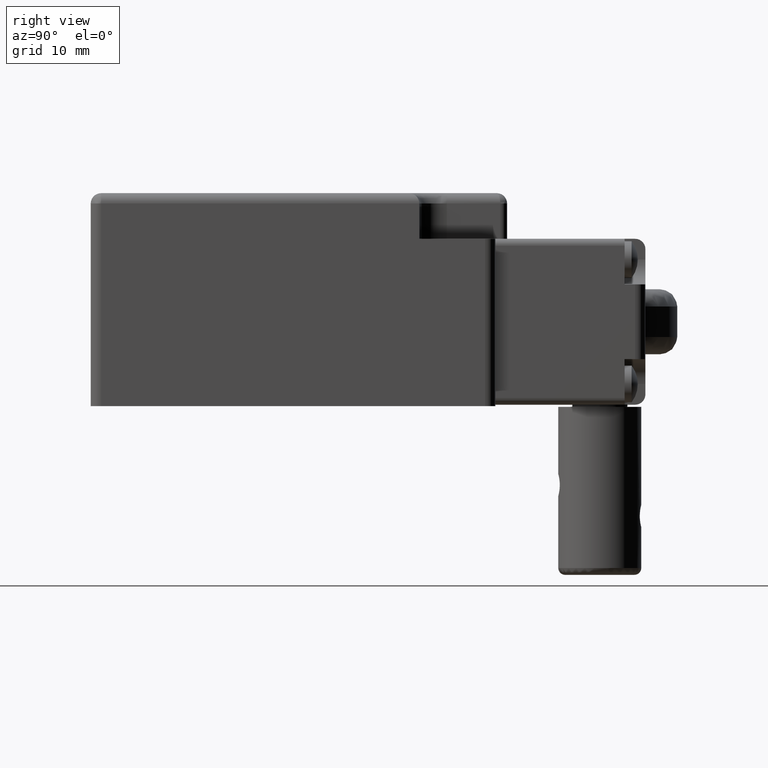
[diagram: clean part render]
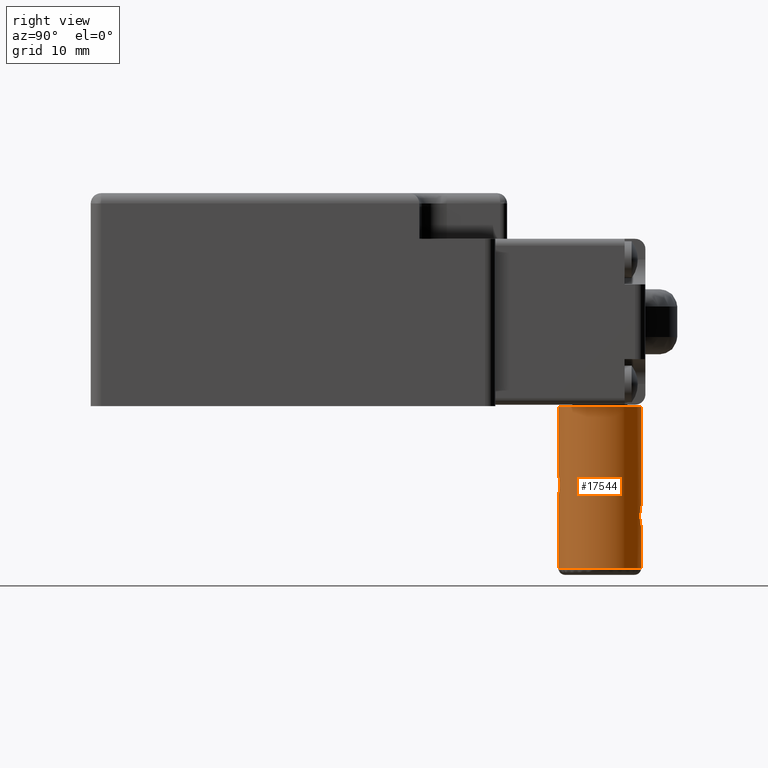
[diagram: same view with one face highlighted and labeled with its STEP entity id]
A machine part, right view. The second image highlights one B-rep face of the part: STEP entity #17544.
In plain terms, the highlighted cylindrical surface (partial cylindrical patch) has radius 6 mm, axis along (0, 0, 1).
Its self-contained STEP definition (entity closure, byte-faithful):
#16998=CARTESIAN_POINT('',(-2.480374E-015,16.099999999999994,-25.200000000000003));
#16999=VERTEX_POINT('',#16998);
#17000=CARTESIAN_POINT('',(-3.813901E-015,16.099999999999994,-22.0));
#17001=VERTEX_POINT('',#17000);
#17002=CARTESIAN_POINT('',(-2.480374E-015,16.099999999999994,-25.200000000000003));
#17003=CARTESIAN_POINT('',(0.106233644467883,16.099999999999994,-25.200000000000003));
#17004=CARTESIAN_POINT('',(0.210598348057782,16.102817240682789,-25.189525583302480));
#17005=CARTESIAN_POINT('',(0.415771067588282,16.113541353002365,-25.148572782769431));
#17006=CARTESIAN_POINT('',(0.517669180042312,16.121581734892580,-25.117565855412536));
#17007=CARTESIAN_POINT('',(0.711236262043647,16.141509477049585,-25.037056187152693));
#17008=CARTESIAN_POINT('',(0.802962663884153,16.153324245561468,-24.987859937617383));
#17009=CARTESIAN_POINT('',(0.976539240108665,16.179352005012710,-24.871721415469310));
#17010=CARTESIAN_POINT('',(1.058324065306069,16.193601877064673,-24.804465339267018));
#17011=CARTESIAN_POINT('',(1.278569390678206,16.235904607827386,-24.584076539719867));
#17012=CARTESIAN_POINT('',(1.397558003168634,16.264450933932245,-24.406356999156394));
#17013=CARTESIAN_POINT('',(1.557418671176274,16.305067010104736,-24.021695464738173));
#17014=CARTESIAN_POINT('',(1.599909473619248,16.317242034719339,-23.810478319876417));
#17015=CARTESIAN_POINT('',(1.600045040480137,16.317279544138991,-23.495794769020129));
#17016=CARTESIAN_POINT('',(1.589515352556807,16.314337192197904,-23.389211943414502));
#17017=CARTESIAN_POINT('',(1.548420667524555,16.303203762596013,-23.183605839143137));
#17018=CARTESIAN_POINT('',(1.518033222017346,16.295061793088404,-23.083625535244721));
#17019=CARTESIAN_POINT('',(1.397011283755964,16.264309015215250,-22.792145262403650));
#17020=CARTESIAN_POINT('',(1.279168946107213,16.236002614202924,-22.616351092783102));
#17021=CARTESIAN_POINT('',(1.057034856170974,16.193362890258989,-22.394331345610183));
#17022=CARTESIAN_POINT('',(0.976757872323931,16.179392732676604,-22.328475074835573));
#17023=CARTESIAN_POINT('',(0.803806929051539,16.153442947735378,-22.212655054692629));
#17024=CARTESIAN_POINT('',(0.710061231692479,16.141373419261107,-22.162384359020095));
#17025=CARTESIAN_POINT('',(0.516989111357506,16.121526955803976,-22.082222696611758));
#17026=CARTESIAN_POINT('',(0.417200613664795,16.113631369430848,-22.051773139444464));
#17027=CARTESIAN_POINT('',(0.210933703716437,16.102819603701999,-22.010481287803003));
#17028=CARTESIAN_POINT('',(0.104714867322355,16.099999999999994,-22.0));
#17029=CARTESIAN_POINT('',(-3.813901E-015,16.099999999999994,-22.0));
#17030=B_SPLINE_CURVE_WITH_KNOTS('',3,(#17002,#17003,#17004,#17005,#17006,#17007,#17008,#17009,#17010,#17011,#17012,#17013,#17014,#17015,#17016,#17017,#17018,#17019,#17020,#17021,#17022,#17023,#17024,#17025,#17026,#17027,#17028,#17029),.UNSPECIFIED.,.F.,.U.,(4,2,2,2,2,2,2,2,2,2,2,2,2,4),(5.814952E-019,0.000314072429703,0.000628144859405,0.000942217289108,0.001256289718811,0.001884434578216,0.002512579437622,0.002826651867325,0.003140724297027,0.003768869156433,0.004082941586135,0.004397014015838,0.004711086445541,0.005025158875244),.UNSPECIFIED.);
#17031=EDGE_CURVE('',#16999,#17001,#17030,.T.);
#17088=CARTESIAN_POINT('',(-3.079131E-015,28.099999999999994,-29.700000000000003));
#17089=VERTEX_POINT('',#17088);
#17090=CARTESIAN_POINT('',(-3.770559E-015,28.099999999999994,-26.500000000000000));
#17091=VERTEX_POINT('',#17090);
#17092=CARTESIAN_POINT('',(-3.079131E-015,28.099999999999994,-29.700000000000003));
#17093=CARTESIAN_POINT('',(0.209372912112592,28.099999999999994,-29.700000000000003));
#17094=CARTESIAN_POINT('',(0.420785346219581,28.088362702380579,-29.657722905774314));
#17095=CARTESIAN_POINT('',(0.709921929052034,28.058640608004900,-29.537672109468254));
#17096=CARTESIAN_POINT('',(0.803535483237783,28.046597470837099,-29.487524767518238));
#17097=CARTESIAN_POINT('',(0.976987903595747,28.020573062568854,-29.371372836553590));
#17098=CARTESIAN_POINT('',(1.057207130714752,28.006603065844899,-29.305486682361384));
#17099=CARTESIAN_POINT('',(1.204801890986887,27.978273479360833,-29.157987458365746));
#17100=CARTESIAN_POINT('',(1.271899276912714,27.963939243243964,-29.076250451267775));
#17101=CARTESIAN_POINT('',(1.387463528556234,27.937675579885713,-28.903578042966522));
#17102=CARTESIAN_POINT('',(1.436791763419254,27.925579532989847,-28.811870459281970));
#17103=CARTESIAN_POINT('',(1.558339142477938,27.894701802810886,-28.519642235638948));
#17104=CARTESIAN_POINT('',(1.599949364884009,27.882746927936790,-28.311392151270404));
#17105=CARTESIAN_POINT('',(1.600025248582381,27.882725931996745,-27.994879322434851));
#17106=CARTESIAN_POINT('',(1.589716109660613,27.885607304003916,-27.890718986900694));
#17107=CARTESIAN_POINT('',(1.548803570209147,27.896693599489737,-27.685026081945210));
#17108=CARTESIAN_POINT('',(1.517737488838749,27.905013333398461,-27.582914597207516));
#17109=CARTESIAN_POINT('',(1.397611757492590,27.935538442951131,-27.293588832822273));
#17110=CARTESIAN_POINT('',(1.278649928433487,27.964074042483301,-27.116063200954933));
#17111=CARTESIAN_POINT('',(0.985283711620876,28.020432925287135,-26.822387667712700));
#17112=CARTESIAN_POINT('',(0.807930653939492,28.048509331680464,-26.703285864756495));
#17113=CARTESIAN_POINT('',(0.518929546296776,28.078301675948307,-26.582896606927775));
#17114=CARTESIAN_POINT('',(0.416886498858677,28.086388824667051,-26.551695485354088));
#17115=CARTESIAN_POINT('',(0.210814811699212,28.097182891007861,-26.510472290844923));
#17116=CARTESIAN_POINT('',(0.106204821126796,28.099999999999994,-26.499999999999993));
#17117=CARTESIAN_POINT('',(-3.770559E-015,28.099999999999994,-26.500000000000000));
#17118=B_SPLINE_CURVE_WITH_KNOTS('',3,(#17092,#17093,#17094,#17095,#17096,#17097,#17098,#17099,#17100,#17101,#17102,#17103,#17104,#17105,#17106,#17107,#17108,#17109,#17110,#17111,#17112,#17113,#17114,#17115,#17116,#17117),.UNSPECIFIED.,.F.,.U.,(4,2,2,2,2,2,2,2,2,2,2,2,4),(0.005025158875244,0.005653133306216,0.005967120521703,0.006281107737189,0.006595094952675,0.006909082168162,0.007537056599134,0.007851043814621,0.008165031030107,0.008793005461080,0.009420979892052,0.009734967107539,0.010048954323025),.UNSPECIFIED.);
#17119=EDGE_CURVE('',#17089,#17091,#17118,.T.);
#17286=CARTESIAN_POINT('',(-3.079134E-015,28.099999999999994,-35.600000000000001));
#17287=VERTEX_POINT('',#17286);
#17288=CARTESIAN_POINT('',(-3.813898E-015,16.099999999999994,-35.600000000000001));
#17289=VERTEX_POINT('',#17288);
#17387=CARTESIAN_POINT('',(-3.813898E-015,16.099999999999994,-35.600000000000001));
#17388=DIRECTION('',(0.0,0.0,1.0));
#17389=VECTOR('',#17388,10.399999999999999);
#17390=LINE('',#17387,#17389);
#17391=EDGE_CURVE('',#17289,#16999,#17390,.T.);
#17422=CARTESIAN_POINT('',(-3.813898E-015,16.099999999999994,-12.299999999999999));
#17423=VERTEX_POINT('',#17422);
#17424=CARTESIAN_POINT('',(-3.813898E-015,16.099999999999994,-22.0));
#17425=DIRECTION('',(0.0,0.0,1.0));
#17426=VECTOR('',#17425,9.700000000000003);
#17427=LINE('',#17424,#17426);
#17428=EDGE_CURVE('',#17001,#17423,#17427,.T.);
#17430=CARTESIAN_POINT('',(-3.079134E-015,28.099999999999994,-12.299999999999999));
#17431=VERTEX_POINT('',#17430);
#17439=CARTESIAN_POINT('',(-3.079134E-015,28.099999999999994,-26.500000000000000));
#17440=DIRECTION('',(0.0,0.0,1.0));
#17441=VECTOR('',#17440,14.200000000000003);
#17442=LINE('',#17439,#17441);
#17443=EDGE_CURVE('',#17091,#17431,#17442,.T.);
#17476=CARTESIAN_POINT('',(-3.079134E-015,28.099999999999994,-35.600000000000001));
#17477=DIRECTION('',(0.0,0.0,1.0));
#17478=VECTOR('',#17477,5.899999999999999);
#17479=LINE('',#17476,#17478);
#17480=EDGE_CURVE('',#17287,#17089,#17479,.T.);
#17517=CARTESIAN_POINT('',(-3.552714E-015,22.099999999999994,-35.600000010000002));
#17518=DIRECTION('',(0.0,0.0,1.0));
#17519=DIRECTION('',(-1.0,0.0,0.0));
#17520=AXIS2_PLACEMENT_3D('',#17517,#17518,#17519);
#17521=CYLINDRICAL_SURFACE('',#17520,6.000000000000002);
#17522=ORIENTED_EDGE('',*,*,#17391,.F.);
#17523=CARTESIAN_POINT('',(-3.079134E-015,22.099999999999994,-35.600000000000001));
#17524=DIRECTION('',(0.0,0.0,1.0));
#17525=DIRECTION('',(0.0,-1.0,0.0));
#17526=AXIS2_PLACEMENT_3D('',#17523,#17524,#17525);
#17527=CIRCLE('',#17526,6.000000000000002);
#17528=EDGE_CURVE('',#17289,#17287,#17527,.T.);
#17529=ORIENTED_EDGE('',*,*,#17528,.T.);
#17530=ORIENTED_EDGE('',*,*,#17480,.T.);
#17531=ORIENTED_EDGE('',*,*,#17119,.T.);
#17532=ORIENTED_EDGE('',*,*,#17443,.T.);
#17533=CARTESIAN_POINT('',(-3.079134E-015,22.099999999999994,-12.299999999999999));
#17534=DIRECTION('',(0.0,0.0,-1.0));
#17535=DIRECTION('',(0.0,-1.0,0.0));
#17536=AXIS2_PLACEMENT_3D('',#17533,#17534,#17535);
#17537=CIRCLE('',#17536,6.000000000000002);
#17538=EDGE_CURVE('',#17431,#17423,#17537,.T.);
#17539=ORIENTED_EDGE('',*,*,#17538,.T.);
#17540=ORIENTED_EDGE('',*,*,#17428,.F.);
#17541=ORIENTED_EDGE('',*,*,#17031,.F.);
#17542=EDGE_LOOP('',(#17522,#17529,#17530,#17531,#17532,#17539,#17540,#17541));
#17543=FACE_OUTER_BOUND('',#17542,.T.);
#17544=ADVANCED_FACE('',(#17543),#17521,.T.);